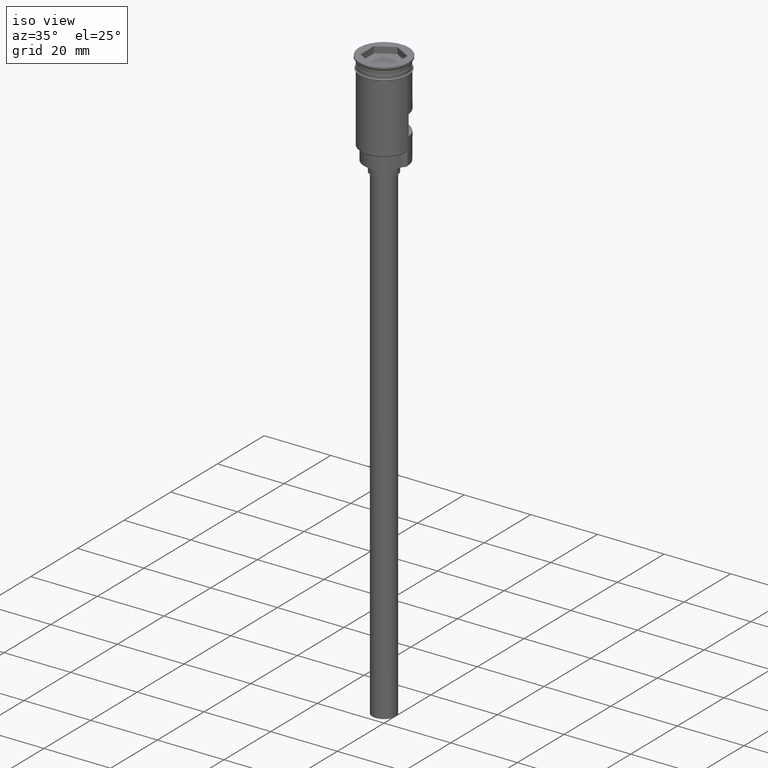
[diagram: clean part render]
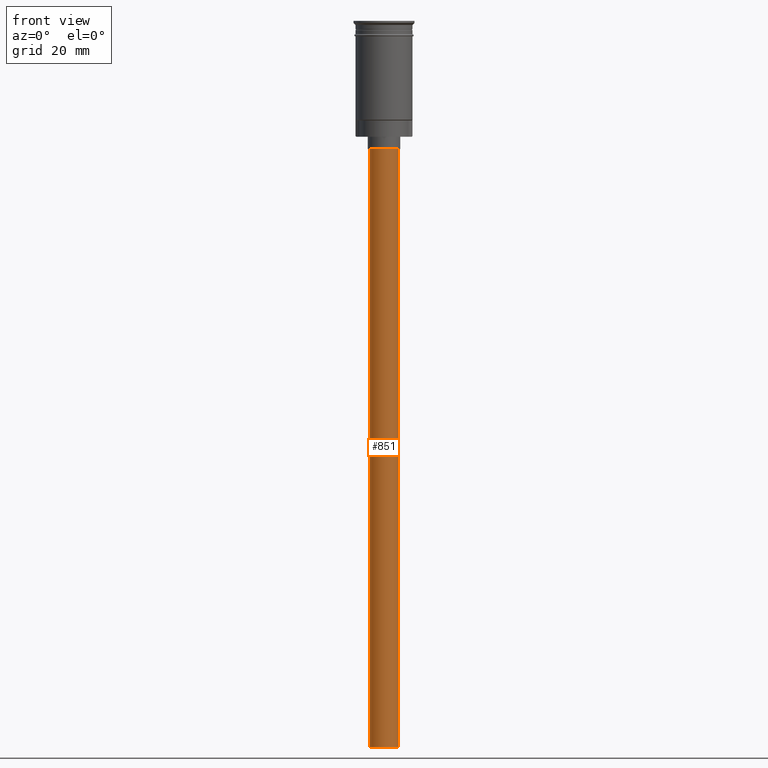
[diagram: tour spotlight — one face highlighted and labeled with its STEP entity id]
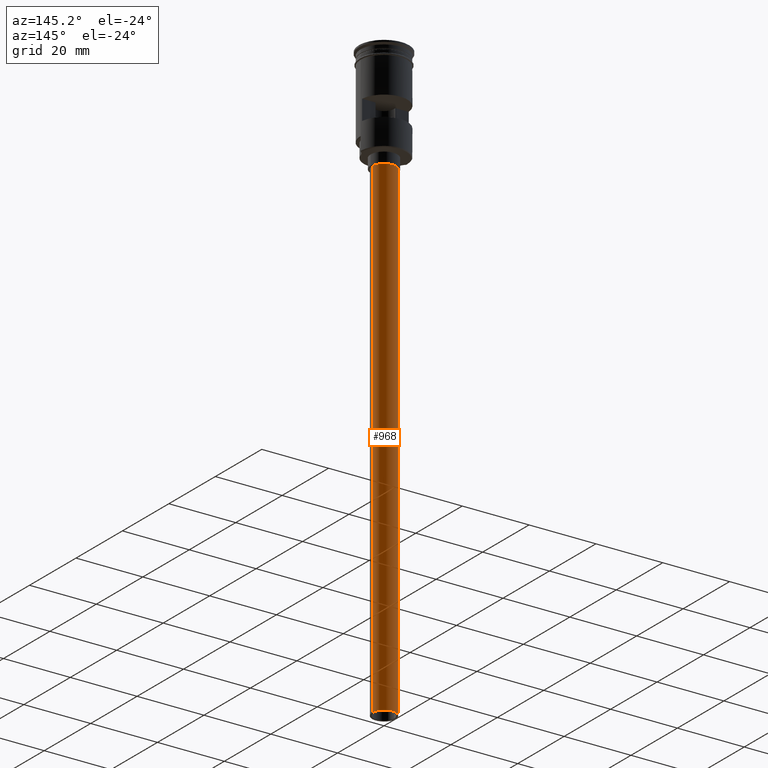
[diagram: tour spotlight — one face highlighted and labeled with its STEP entity id]
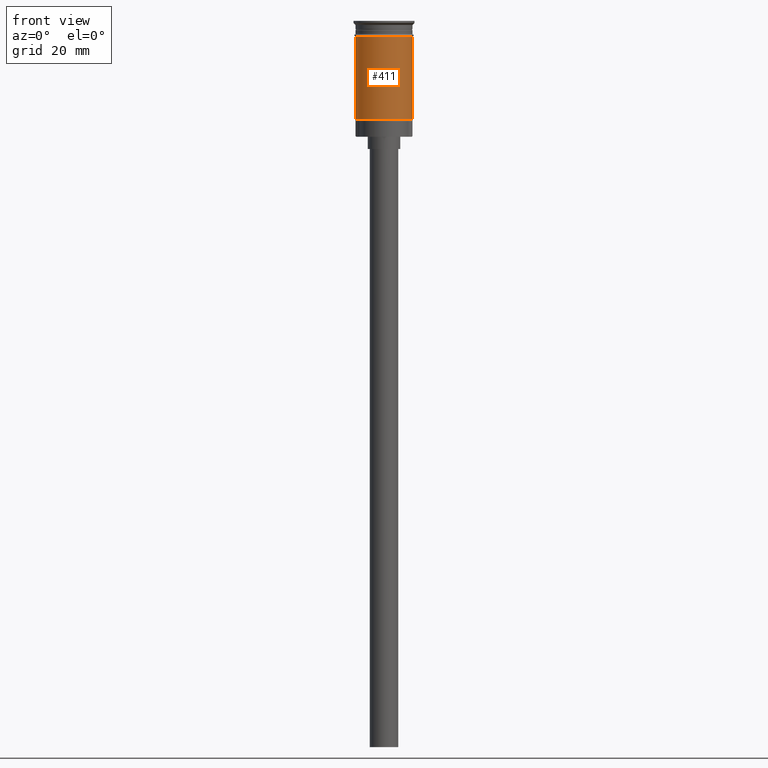
[diagram: tour spotlight — one face highlighted and labeled with its STEP entity id]
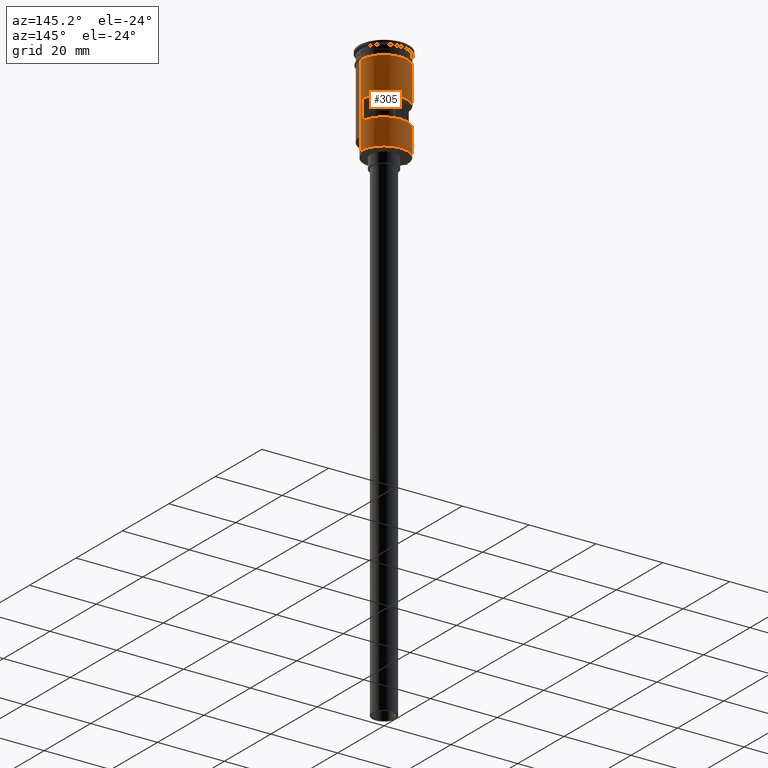
[diagram: tour spotlight — one face highlighted and labeled with its STEP entity id]
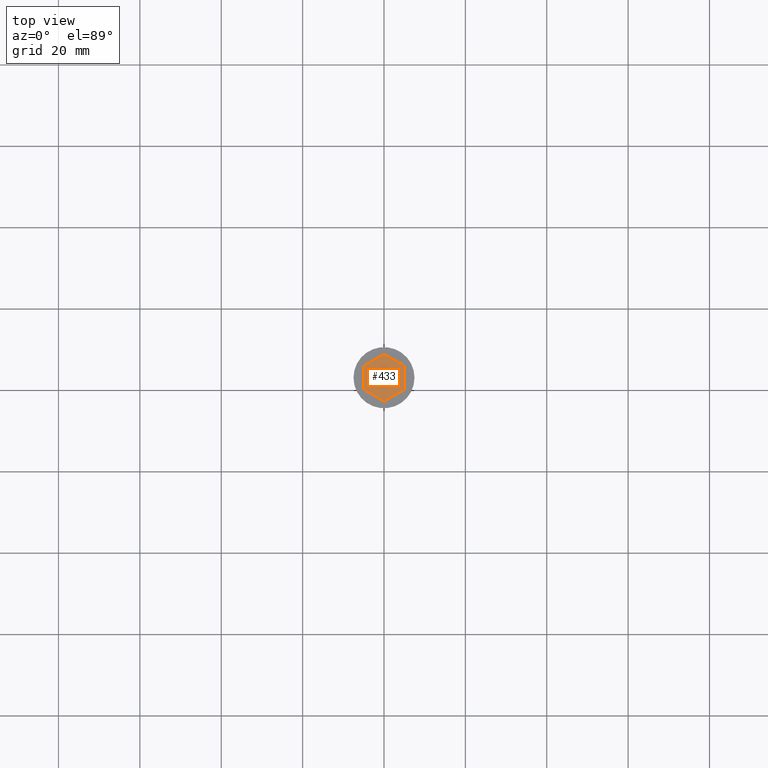
[diagram: tour spotlight — one face highlighted and labeled with its STEP entity id]
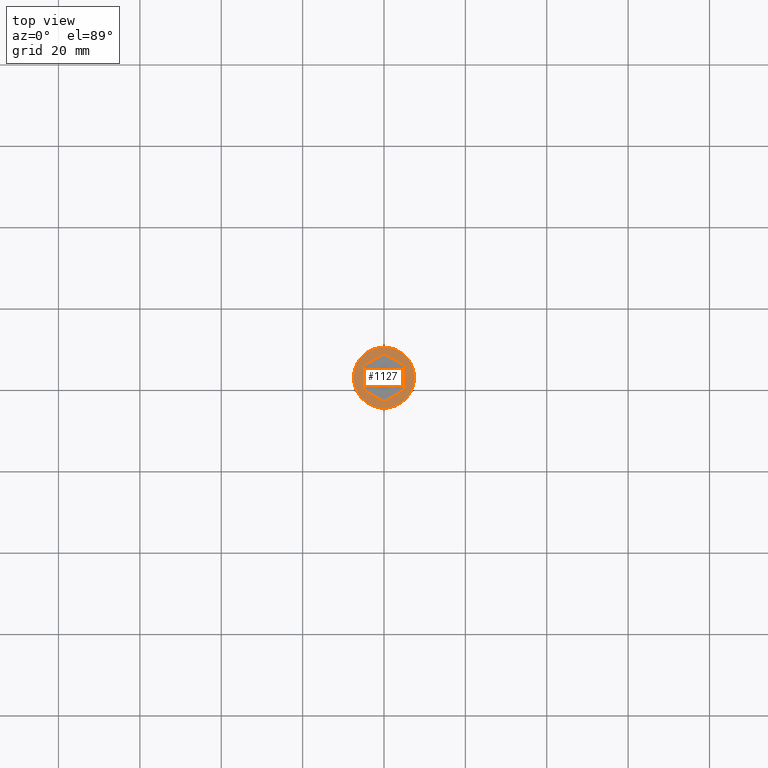
[diagram: tour spotlight — one face highlighted and labeled with its STEP entity id]
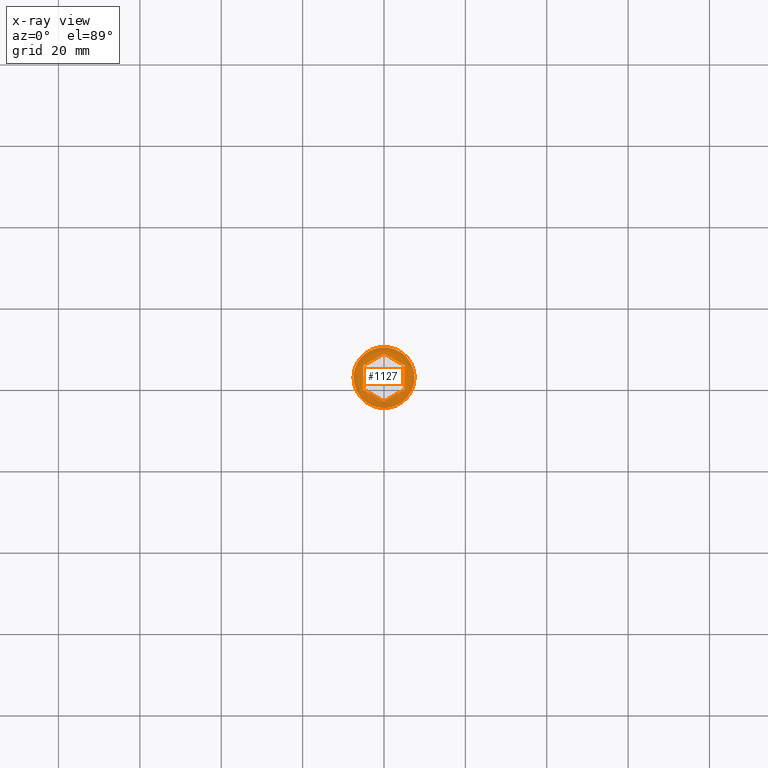
[diagram: x-ray of the same camera — body ghosted, this tour face saturated]
A machine part: a face-by-face anatomy tour. The part has 55 B-rep faces; the first image is the clean iso view, then the 6 largest visible faces are spotlighted one at a time (largest first), each with its STEP entity span.

Face 1 — front view, entity #851. In plain terms, the highlighted cylindrical surface (edge-blend (fillet) strip) has radius 3.5 mm, axis along (-0, -0, 1).
Definition (entity closure, byte-faithful):
#4 = CARTESIAN_POINT ( 'NONE',  ( 0.000000000000000000, 0.000000000000000000, -178.5000000000000000 ) ) ;
#102 = EDGE_LOOP ( 'NONE', ( #1063, #1153, #316, #1580 ) ) ;
#316 = ORIENTED_EDGE ( 'NONE', *, *, #535, .T. ) ;
#321 = CARTESIAN_POINT ( 'NONE',  ( -3.500000000000000444, 4.286263797015737088E-16, -178.5000000000000000 ) ) ;
#535 = EDGE_CURVE ( 'NONE', #846, #810, #944, .T. ) ;
#536 = VERTEX_POINT ( 'NONE', #1206 ) ;
#645 = LINE ( 'NONE', #321, #1292 ) ;
#672 = DIRECTION ( 'NONE',  ( -1.000000000000000000, 0.000000000000000000, 0.000000000000000000 ) ) ;
#675 = CARTESIAN_POINT ( 'NONE',  ( -3.500000000000000444, 4.286263797015737088E-16, -31.50000000000000000 ) ) ;
#704 = VERTEX_POINT ( 'NONE', #675 ) ;
#722 = AXIS2_PLACEMENT_3D ( 'NONE', #1087, #1451, #1582 ) ;
#794 = AXIS2_PLACEMENT_3D ( 'NONE', #809, #1059, #1202 ) ;
#809 = CARTESIAN_POINT ( 'NONE',  ( 0.000000000000000000, 0.000000000000000000, -31.50000000000000000 ) ) ;
#810 = VERTEX_POINT ( 'NONE', #1467 ) ;
#846 = VERTEX_POINT ( 'NONE', #1138 ) ;
#851 = ADVANCED_FACE ( 'NONE', ( #972 ), #1469, .T. ) ;
#867 = CIRCLE ( 'NONE', #794, 3.500000000000000444 ) ;
#944 = LINE ( 'NONE', #1315, #1390 ) ;
#972 = FACE_OUTER_BOUND ( 'NONE', #102, .T. ) ;
#1017 = EDGE_CURVE ( 'NONE', #536, #704, #645, .T. ) ;
#1059 = DIRECTION ( 'NONE',  ( 0.000000000000000000, 0.000000000000000000, -1.000000000000000000 ) ) ;
#1063 = ORIENTED_EDGE ( 'NONE', *, *, #1017, .F. ) ;
#1087 = CARTESIAN_POINT ( 'NONE',  ( 0.000000000000000000, 0.000000000000000000, -178.5000000000000000 ) ) ;
#1138 = CARTESIAN_POINT ( 'NONE',  ( 3.500000000000000444, 0.000000000000000000, -178.5000000000000000 ) ) ;
#1153 = ORIENTED_EDGE ( 'NONE', *, *, #1483, .F. ) ;
#1200 = CIRCLE ( 'NONE', #1269, 3.500000000000000444 ) ;
#1202 = DIRECTION ( 'NONE',  ( -1.000000000000000000, 0.000000000000000000, 0.000000000000000000 ) ) ;
#1206 = CARTESIAN_POINT ( 'NONE',  ( -3.500000000000000444, 4.286263797015737088E-16, -178.5000000000000000 ) ) ;
#1269 = AXIS2_PLACEMENT_3D ( 'NONE', #4, #1359, #672 ) ;
#1292 = VECTOR ( 'NONE', #1442, 1000.000000000000000 ) ;
#1315 = CARTESIAN_POINT ( 'NONE',  ( 3.500000000000000444, 0.000000000000000000, -178.5000000000000000 ) ) ;
#1334 = DIRECTION ( 'NONE',  ( -0.000000000000000000, -0.000000000000000000, 1.000000000000000000 ) ) ;
#1359 = DIRECTION ( 'NONE',  ( 0.000000000000000000, 0.000000000000000000, -1.000000000000000000 ) ) ;
#1390 = VECTOR ( 'NONE', #1334, 1000.000000000000000 ) ;
#1442 = DIRECTION ( 'NONE',  ( -0.000000000000000000, -0.000000000000000000, 1.000000000000000000 ) ) ;
#1451 = DIRECTION ( 'NONE',  ( -0.000000000000000000, -0.000000000000000000, 1.000000000000000000 ) ) ;
#1467 = CARTESIAN_POINT ( 'NONE',  ( 3.500000000000000444, 0.000000000000000000, -31.50000000000000000 ) ) ;
#1469 = CYLINDRICAL_SURFACE ( 'NONE', #722, 3.500000000000000444 ) ;
#1483 = EDGE_CURVE ( 'NONE', #846, #536, #1200, .T. ) ;
#1580 = ORIENTED_EDGE ( 'NONE', *, *, #1590, .T. ) ;
#1582 = DIRECTION ( 'NONE',  ( 1.000000000000000000, 0.000000000000000000, 0.000000000000000000 ) ) ;
#1590 = EDGE_CURVE ( 'NONE', #810, #704, #867, .T. ) ;

Face 2 — auxiliary view, entity #968. In plain terms, the highlighted cylindrical surface (edge-blend (fillet) strip) has radius 3.5 mm, axis along (-0, -0, 1).
Definition (entity closure, byte-faithful):
#39 = AXIS2_PLACEMENT_3D ( 'NONE', #1376, #1012, #500 ) ;
#40 = ORIENTED_EDGE ( 'NONE', *, *, #1017, .T. ) ;
#59 = DIRECTION ( 'NONE',  ( -1.000000000000000000, 0.000000000000000000, 0.000000000000000000 ) ) ;
#180 = CARTESIAN_POINT ( 'NONE',  ( 0.000000000000000000, 0.000000000000000000, -178.5000000000000000 ) ) ;
#246 = ORIENTED_EDGE ( 'NONE', *, *, #943, .T. ) ;
#321 = CARTESIAN_POINT ( 'NONE',  ( -3.500000000000000444, 4.286263797015737088E-16, -178.5000000000000000 ) ) ;
#338 = ORIENTED_EDGE ( 'NONE', *, *, #535, .F. ) ;
#471 = FACE_OUTER_BOUND ( 'NONE', #668, .T. ) ;
#500 = DIRECTION ( 'NONE',  ( -1.000000000000000000, 0.000000000000000000, 0.000000000000000000 ) ) ;
#535 = EDGE_CURVE ( 'NONE', #846, #810, #944, .T. ) ;
#536 = VERTEX_POINT ( 'NONE', #1206 ) ;
#634 = EDGE_CURVE ( 'NONE', #536, #846, #1586, .T. ) ;
#645 = LINE ( 'NONE', #321, #1292 ) ;
#668 = EDGE_LOOP ( 'NONE', ( #1425, #40, #246, #338 ) ) ;
#671 = DIRECTION ( 'NONE',  ( 0.000000000000000000, 0.000000000000000000, -1.000000000000000000 ) ) ;
#675 = CARTESIAN_POINT ( 'NONE',  ( -3.500000000000000444, 4.286263797015737088E-16, -31.50000000000000000 ) ) ;
#689 = CIRCLE ( 'NONE', #39, 3.500000000000000444 ) ;
#704 = VERTEX_POINT ( 'NONE', #675 ) ;
#729 = DIRECTION ( 'NONE',  ( -0.000000000000000000, -0.000000000000000000, 1.000000000000000000 ) ) ;
#735 = CARTESIAN_POINT ( 'NONE',  ( 0.000000000000000000, 0.000000000000000000, -178.5000000000000000 ) ) ;
#810 = VERTEX_POINT ( 'NONE', #1467 ) ;
#846 = VERTEX_POINT ( 'NONE', #1138 ) ;
#943 = EDGE_CURVE ( 'NONE', #704, #810, #689, .T. ) ;
#944 = LINE ( 'NONE', #1315, #1390 ) ;
#957 = CYLINDRICAL_SURFACE ( 'NONE', #1480, 3.500000000000000444 ) ;
#968 = ADVANCED_FACE ( 'NONE', ( #471 ), #957, .T. ) ;
#1012 = DIRECTION ( 'NONE',  ( 0.000000000000000000, 0.000000000000000000, -1.000000000000000000 ) ) ;
#1017 = EDGE_CURVE ( 'NONE', #536, #704, #645, .T. ) ;
#1138 = CARTESIAN_POINT ( 'NONE',  ( 3.500000000000000444, 0.000000000000000000, -178.5000000000000000 ) ) ;
#1206 = CARTESIAN_POINT ( 'NONE',  ( -3.500000000000000444, 4.286263797015737088E-16, -178.5000000000000000 ) ) ;
#1292 = VECTOR ( 'NONE', #1442, 1000.000000000000000 ) ;
#1315 = CARTESIAN_POINT ( 'NONE',  ( 3.500000000000000444, 0.000000000000000000, -178.5000000000000000 ) ) ;
#1334 = DIRECTION ( 'NONE',  ( -0.000000000000000000, -0.000000000000000000, 1.000000000000000000 ) ) ;
#1376 = CARTESIAN_POINT ( 'NONE',  ( 0.000000000000000000, 0.000000000000000000, -31.50000000000000000 ) ) ;
#1390 = VECTOR ( 'NONE', #1334, 1000.000000000000000 ) ;
#1424 = AXIS2_PLACEMENT_3D ( 'NONE', #180, #671, #59 ) ;
#1425 = ORIENTED_EDGE ( 'NONE', *, *, #634, .F. ) ;
#1442 = DIRECTION ( 'NONE',  ( -0.000000000000000000, -0.000000000000000000, 1.000000000000000000 ) ) ;
#1467 = CARTESIAN_POINT ( 'NONE',  ( 3.500000000000000444, 0.000000000000000000, -31.50000000000000000 ) ) ;
#1480 = AXIS2_PLACEMENT_3D ( 'NONE', #735, #729, #1599 ) ;
#1586 = CIRCLE ( 'NONE', #1424, 3.500000000000000444 ) ;
#1599 = DIRECTION ( 'NONE',  ( 1.000000000000000000, 0.000000000000000000, 0.000000000000000000 ) ) ;

Face 3 — front view, entity #411. In plain terms, the highlighted cylindrical surface (edge-blend (fillet) strip) has radius 7 mm, axis along (-0, -0, 1).
Definition (entity closure, byte-faithful):
#19 = DIRECTION ( 'NONE',  ( 1.000000000000000000, 0.000000000000000000, 0.000000000000000000 ) ) ;
#32 = ORIENTED_EDGE ( 'NONE', *, *, #759, .F. ) ;
#55 = LINE ( 'NONE', #628, #212 ) ;
#91 = DIRECTION ( 'NONE',  ( -0.000000000000000000, -0.000000000000000000, 1.000000000000000000 ) ) ;
#121 = EDGE_LOOP ( 'NONE', ( #420, #309, #622, #32 ) ) ;
#145 = LINE ( 'NONE', #1572, #618 ) ;
#206 = CARTESIAN_POINT ( 'NONE',  ( 6.999999999999996447, 8.572527594031468259E-16, -24.29999999999998295 ) ) ;
#212 = VECTOR ( 'NONE', #91, 1000.000000000000000 ) ;
#228 = CARTESIAN_POINT ( 'NONE',  ( -7.000000000000000000, 8.572527594031472204E-16, -3.799999999999998490 ) ) ;
#238 = EDGE_CURVE ( 'NONE', #834, #292, #1065, .T. ) ;
#292 = VERTEX_POINT ( 'NONE', #206 ) ;
#309 = ORIENTED_EDGE ( 'NONE', *, *, #238, .T. ) ;
#333 = VERTEX_POINT ( 'NONE', #371 ) ;
#348 = AXIS2_PLACEMENT_3D ( 'NONE', #1336, #1592, #482 ) ;
#371 = CARTESIAN_POINT ( 'NONE',  ( 6.999999999999999112, 0.000000000000000000, -3.799999999999998490 ) ) ;
#411 = ADVANCED_FACE ( 'NONE', ( #1068 ), #453, .T. ) ;
#420 = ORIENTED_EDGE ( 'NONE', *, *, #1057, .F. ) ;
#453 = CYLINDRICAL_SURFACE ( 'NONE', #933, 6.999999999999996447 ) ;
#482 = DIRECTION ( 'NONE',  ( -1.000000000000000000, 0.000000000000000000, 0.000000000000000000 ) ) ;
#618 = VECTOR ( 'NONE', #1053, 1000.000000000000000 ) ;
#622 = ORIENTED_EDGE ( 'NONE', *, *, #1047, .T. ) ;
#628 = CARTESIAN_POINT ( 'NONE',  ( -6.999999999999996447, 8.572527594031468259E-16, 0.000000000000000000 ) ) ;
#750 = DIRECTION ( 'NONE',  ( -0.000000000000000000, -0.000000000000000000, 1.000000000000000000 ) ) ;
#759 = EDGE_CURVE ( 'NONE', #1507, #333, #1591, .T. ) ;
#781 = DIRECTION ( 'NONE',  ( 1.000000000000000000, 0.000000000000000000, 0.000000000000000000 ) ) ;
#834 = VERTEX_POINT ( 'NONE', #1305 ) ;
#933 = AXIS2_PLACEMENT_3D ( 'NONE', #1588, #750, #19 ) ;
#1039 = AXIS2_PLACEMENT_3D ( 'NONE', #1164, #1383, #781 ) ;
#1047 = EDGE_CURVE ( 'NONE', #292, #333, #145, .T. ) ;
#1053 = DIRECTION ( 'NONE',  ( -0.000000000000000000, -0.000000000000000000, 1.000000000000000000 ) ) ;
#1057 = EDGE_CURVE ( 'NONE', #834, #1507, #55, .T. ) ;
#1065 = CIRCLE ( 'NONE', #348, 6.999999999999996447 ) ;
#1068 = FACE_OUTER_BOUND ( 'NONE', #121, .T. ) ;
#1164 = CARTESIAN_POINT ( 'NONE',  ( 0.000000000000000000, 0.000000000000000000, -3.799999999999998490 ) ) ;
#1305 = CARTESIAN_POINT ( 'NONE',  ( -6.999999999999993783, 0.000000000000000000, -24.29999999999998295 ) ) ;
#1336 = CARTESIAN_POINT ( 'NONE',  ( 0.000000000000000000, 0.000000000000000000, -24.29999999999998295 ) ) ;
#1383 = DIRECTION ( 'NONE',  ( -0.000000000000000000, -0.000000000000000000, 1.000000000000000000 ) ) ;
#1507 = VERTEX_POINT ( 'NONE', #228 ) ;
#1572 = CARTESIAN_POINT ( 'NONE',  ( 6.999999999999996447, 0.000000000000000000, 0.000000000000000000 ) ) ;
#1588 = CARTESIAN_POINT ( 'NONE',  ( 0.000000000000000000, 0.000000000000000000, 0.000000000000000000 ) ) ;
#1591 = CIRCLE ( 'NONE', #1039, 6.999999999999999112 ) ;
#1592 = DIRECTION ( 'NONE',  ( -0.000000000000000000, -0.000000000000000000, 1.000000000000000000 ) ) ;

Face 4 — auxiliary view, entity #305. In plain terms, the highlighted cylindrical surface (edge-blend (fillet) strip) has radius 7 mm, axis along (-0, -0, 1).
Definition (entity closure, byte-faithful):
#25 = ORIENTED_EDGE ( 'NONE', *, *, #986, .F. ) ;
#49 = LINE ( 'NONE', #850, #449 ) ;
#55 = LINE ( 'NONE', #628, #212 ) ;
#69 = DIRECTION ( 'NONE',  ( -1.000000000000000000, 0.000000000000000000, 0.000000000000000000 ) ) ;
#88 = CYLINDRICAL_SURFACE ( 'NONE', #1290, 6.999999999999996447 ) ;
#91 = DIRECTION ( 'NONE',  ( -0.000000000000000000, -0.000000000000000000, 1.000000000000000000 ) ) ;
#145 = LINE ( 'NONE', #1572, #618 ) ;
#146 = DIRECTION ( 'NONE',  ( -0.000000000000000000, -5.421010862427526114E-16, 1.000000000000000000 ) ) ;
#165 = CARTESIAN_POINT ( 'NONE',  ( 6.974238309665075519, 0.5999999999999999778, -20.50000000000000000 ) ) ;
#198 = CARTESIAN_POINT ( 'NONE',  ( -6.974238309665074631, 0.5999999999999999778, -14.50000000000000178 ) ) ;
#206 = CARTESIAN_POINT ( 'NONE',  ( 6.999999999999996447, 8.572527594031468259E-16, -24.29999999999998295 ) ) ;
#212 = VECTOR ( 'NONE', #91, 1000.000000000000000 ) ;
#228 = CARTESIAN_POINT ( 'NONE',  ( -7.000000000000000000, 8.572527594031472204E-16, -3.799999999999998490 ) ) ;
#236 = DIRECTION ( 'NONE',  ( -0.000000000000000000, -2.710505431213763057E-16, -1.000000000000000000 ) ) ;
#290 = CARTESIAN_POINT ( 'NONE',  ( -6.999999999999993783, 0.000000000000000000, -28.29999999999999361 ) ) ;
#292 = VERTEX_POINT ( 'NONE', #206 ) ;
#304 = LINE ( 'NONE', #1301, #940 ) ;
#305 = ADVANCED_FACE ( 'NONE', ( #690, #1170 ), #88, .T. ) ;
#307 = CARTESIAN_POINT ( 'NONE',  ( -6.974238309665074631, 0.5999999999999999778, -20.50000000000000000 ) ) ;
#308 = DIRECTION ( 'NONE',  ( -0.000000000000000000, -0.000000000000000000, 1.000000000000000000 ) ) ;
#320 = DIRECTION ( 'NONE',  ( -0.000000000000000000, -0.000000000000000000, 1.000000000000000000 ) ) ;
#333 = VERTEX_POINT ( 'NONE', #371 ) ;
#355 = CIRCLE ( 'NONE', #1041, 6.999999999999996447 ) ;
#367 = EDGE_LOOP ( 'NONE', ( #1560, #1060, #1554, #1541 ) ) ;
#371 = CARTESIAN_POINT ( 'NONE',  ( 6.999999999999999112, 0.000000000000000000, -3.799999999999998490 ) ) ;
#378 = CARTESIAN_POINT ( 'NONE',  ( 6.999999999999993783, 8.572527594031465301E-16, -28.50000000000000000 ) ) ;
#419 = VERTEX_POINT ( 'NONE', #165 ) ;
#437 = CARTESIAN_POINT ( 'NONE',  ( -6.974238309665074631, 0.5999999999999999778, 0.000000000000000000 ) ) ;
#449 = VECTOR ( 'NONE', #1330, 1000.000000000000000 ) ;
#460 = ORIENTED_EDGE ( 'NONE', *, *, #1047, .F. ) ;
#516 = LINE ( 'NONE', #437, #643 ) ;
#530 = VERTEX_POINT ( 'NONE', #835 ) ;
#599 = VERTEX_POINT ( 'NONE', #307 ) ;
#618 = VECTOR ( 'NONE', #1053, 1000.000000000000000 ) ;
#628 = CARTESIAN_POINT ( 'NONE',  ( -6.999999999999996447, 8.572527594031468259E-16, 0.000000000000000000 ) ) ;
#643 = VECTOR ( 'NONE', #308, 1000.000000000000000 ) ;
#674 = ORIENTED_EDGE ( 'NONE', *, *, #1118, .T. ) ;
#690 = FACE_BOUND ( 'NONE', #367, .T. ) ;
#724 = VERTEX_POINT ( 'NONE', #290 ) ;
#727 = AXIS2_PLACEMENT_3D ( 'NONE', #756, #146, #878 ) ;
#740 = LINE ( 'NONE', #378, #985 ) ;
#744 = ORIENTED_EDGE ( 'NONE', *, *, #1057, .T. ) ;
#756 = CARTESIAN_POINT ( 'NONE',  ( 0.000000000000000000, 0.000000000000000000, -20.50000000000000000 ) ) ;
#758 = DIRECTION ( 'NONE',  ( -0.000000000000000000, -0.000000000000000000, 1.000000000000000000 ) ) ;
#772 = AXIS2_PLACEMENT_3D ( 'NONE', #1318, #236, #1207 ) ;
#797 = EDGE_CURVE ( 'NONE', #530, #419, #49, .T. ) ;
#802 = DIRECTION ( 'NONE',  ( 0.000000000000000000, 0.000000000000000000, 1.000000000000000000 ) ) ;
#816 = DIRECTION ( 'NONE',  ( -0.000000000000000000, -0.000000000000000000, 1.000000000000000000 ) ) ;
#834 = VERTEX_POINT ( 'NONE', #1305 ) ;
#835 = CARTESIAN_POINT ( 'NONE',  ( 6.974238309665075519, 0.5999999999999999778, -14.50000000000000178 ) ) ;
#850 = CARTESIAN_POINT ( 'NONE',  ( 6.974238309665074631, 0.5999999999999999778, 0.000000000000000000 ) ) ;
#878 = DIRECTION ( 'NONE',  ( 0.000000000000000000, 1.000000000000000000, 4.956352788505165240E-16 ) ) ;
#916 = CIRCLE ( 'NONE', #772, 6.999999999999996447 ) ;
#922 = EDGE_CURVE ( 'NONE', #333, #1507, #1531, .T. ) ;
#939 = DIRECTION ( 'NONE',  ( -0.000000000000000000, -0.000000000000000000, 1.000000000000000000 ) ) ;
#940 = VECTOR ( 'NONE', #320, 1000.000000000000000 ) ;
#961 = AXIS2_PLACEMENT_3D ( 'NONE', #1186, #816, #1055 ) ;
#985 = VECTOR ( 'NONE', #758, 1000.000000000000000 ) ;
#986 = EDGE_CURVE ( 'NONE', #1497, #292, #740, .T. ) ;
#1041 = AXIS2_PLACEMENT_3D ( 'NONE', #1402, #802, #69 ) ;
#1047 = EDGE_CURVE ( 'NONE', #292, #333, #145, .T. ) ;
#1053 = DIRECTION ( 'NONE',  ( -0.000000000000000000, -0.000000000000000000, 1.000000000000000000 ) ) ;
#1055 = DIRECTION ( 'NONE',  ( 1.000000000000000000, 0.000000000000000000, 0.000000000000000000 ) ) ;
#1057 = EDGE_CURVE ( 'NONE', #834, #1507, #55, .T. ) ;
#1060 = ORIENTED_EDGE ( 'NONE', *, *, #797, .F. ) ;
#1076 = CARTESIAN_POINT ( 'NONE',  ( 6.999999999999993783, 8.572527594031465301E-16, -28.29999999999999361 ) ) ;
#1102 = ORIENTED_EDGE ( 'NONE', *, *, #922, .F. ) ;
#1118 = EDGE_CURVE ( 'NONE', #724, #834, #304, .T. ) ;
#1170 = FACE_OUTER_BOUND ( 'NONE', #1522, .T. ) ;
#1181 = ORIENTED_EDGE ( 'NONE', *, *, #1360, .T. ) ;
#1186 = CARTESIAN_POINT ( 'NONE',  ( 0.000000000000000000, 0.000000000000000000, -3.799999999999998490 ) ) ;
#1207 = DIRECTION ( 'NONE',  ( 0.000000000000000000, -1.000000000000000000, 2.478176394252582620E-16 ) ) ;
#1290 = AXIS2_PLACEMENT_3D ( 'NONE', #1555, #939, #1431 ) ;
#1301 = CARTESIAN_POINT ( 'NONE',  ( -6.999999999999993783, 0.000000000000000000, -28.50000000000000000 ) ) ;
#1305 = CARTESIAN_POINT ( 'NONE',  ( -6.999999999999993783, 0.000000000000000000, -24.29999999999998295 ) ) ;
#1310 = EDGE_CURVE ( 'NONE', #1435, #530, #916, .T. ) ;
#1318 = CARTESIAN_POINT ( 'NONE',  ( 0.000000000000000000, 0.000000000000000000, -14.50000000000000178 ) ) ;
#1330 = DIRECTION ( 'NONE',  ( 0.000000000000000000, 0.000000000000000000, -1.000000000000000000 ) ) ;
#1350 = CIRCLE ( 'NONE', #727, 6.999999999999996447 ) ;
#1360 = EDGE_CURVE ( 'NONE', #1497, #724, #355, .T. ) ;
#1361 = EDGE_CURVE ( 'NONE', #599, #1435, #516, .T. ) ;
#1402 = CARTESIAN_POINT ( 'NONE',  ( 0.000000000000000000, 0.000000000000000000, -28.29999999999999361 ) ) ;
#1431 = DIRECTION ( 'NONE',  ( 1.000000000000000000, 0.000000000000000000, 0.000000000000000000 ) ) ;
#1435 = VERTEX_POINT ( 'NONE', #198 ) ;
#1445 = EDGE_CURVE ( 'NONE', #419, #599, #1350, .T. ) ;
#1497 = VERTEX_POINT ( 'NONE', #1076 ) ;
#1507 = VERTEX_POINT ( 'NONE', #228 ) ;
#1522 = EDGE_LOOP ( 'NONE', ( #674, #744, #1102, #460, #25, #1181 ) ) ;
#1531 = CIRCLE ( 'NONE', #961, 6.999999999999999112 ) ;
#1541 = ORIENTED_EDGE ( 'NONE', *, *, #1361, .F. ) ;
#1554 = ORIENTED_EDGE ( 'NONE', *, *, #1310, .F. ) ;
#1555 = CARTESIAN_POINT ( 'NONE',  ( 0.000000000000000000, 0.000000000000000000, 0.000000000000000000 ) ) ;
#1560 = ORIENTED_EDGE ( 'NONE', *, *, #1445, .F. ) ;
#1572 = CARTESIAN_POINT ( 'NONE',  ( 6.999999999999996447, 0.000000000000000000, 0.000000000000000000 ) ) ;

Face 5 — top view, entity #433. In plain terms, the highlighted planar face has unit normal (-0, 0, 1).
Definition (entity closure, byte-faithful):
#12 = VECTOR ( 'NONE', #376, 1000.000000000000114 ) ;
#30 = DIRECTION ( 'NONE',  ( 0.8660254037844385966, 0.4999999999999998890, 0.000000000000000000 ) ) ;
#48 = LINE ( 'NONE', #463, #1343 ) ;
#86 = CARTESIAN_POINT ( 'NONE',  ( 8.673617379884035472E-16, -5.773502691896257311, -2.000000000000000000 ) ) ;
#115 = CARTESIAN_POINT ( 'NONE',  ( -4.999999999999999112, 0.000000000000000000, -2.000000000000000000 ) ) ;
#128 = VECTOR ( 'NONE', #1000, 1000.000000000000114 ) ;
#129 = EDGE_CURVE ( 'NONE', #1459, #703, #512, .T. ) ;
#154 = PLANE ( 'NONE',  #1527 ) ;
#296 = CARTESIAN_POINT ( 'NONE',  ( 2.499999999999999556, -4.330127018922193649, -2.000000000000000000 ) ) ;
#360 = LINE ( 'NONE', #753, #1141 ) ;
#366 = EDGE_CURVE ( 'NONE', #1027, #1169, #418, .T. ) ;
#376 = DIRECTION ( 'NONE',  ( 0.8660254037844387076, -0.4999999999999998890, 0.000000000000000000 ) ) ;
#418 = LINE ( 'NONE', #296, #1317 ) ;
#433 = ADVANCED_FACE ( 'NONE', ( #1487 ), #154, .T. ) ;
#463 = CARTESIAN_POINT ( 'NONE',  ( -2.499999999999999112, 4.330127018922192761, -2.000000000000000000 ) ) ;
#485 = ORIENTED_EDGE ( 'NONE', *, *, #1312, .T. ) ;
#509 = CARTESIAN_POINT ( 'NONE',  ( 0.000000000000000000, 0.000000000000000000, -2.000000000000000000 ) ) ;
#512 = LINE ( 'NONE', #1133, #128 ) ;
#560 = CARTESIAN_POINT ( 'NONE',  ( 0.000000000000000000, 5.773502691896255534, -2.000000000000000000 ) ) ;
#568 = EDGE_LOOP ( 'NONE', ( #1366, #648, #485, #1374, #1470, #699 ) ) ;
#636 = EDGE_CURVE ( 'NONE', #703, #1077, #48, .T. ) ;
#637 = DIRECTION ( 'NONE',  ( 0.000000000000000000, 1.000000000000000000, -0.000000000000000000 ) ) ;
#639 = VERTEX_POINT ( 'NONE', #935 ) ;
#648 = ORIENTED_EDGE ( 'NONE', *, *, #636, .T. ) ;
#697 = DIRECTION ( 'NONE',  ( 1.000000000000000000, 0.000000000000000000, 0.000000000000000000 ) ) ;
#699 = ORIENTED_EDGE ( 'NONE', *, *, #864, .T. ) ;
#703 = VERTEX_POINT ( 'NONE', #560 ) ;
#713 = CARTESIAN_POINT ( 'NONE',  ( -4.999999999999999112, 2.886751345948128655, -2.000000000000000000 ) ) ;
#739 = CARTESIAN_POINT ( 'NONE',  ( -2.499999999999999112, -4.330127018922193649, -2.000000000000000000 ) ) ;
#753 = CARTESIAN_POINT ( 'NONE',  ( 4.999999999999999112, 0.000000000000000000, -2.000000000000000000 ) ) ;
#793 = VECTOR ( 'NONE', #1578, 1000.000000000000000 ) ;
#864 = EDGE_CURVE ( 'NONE', #1169, #1459, #360, .T. ) ;
#880 = DIRECTION ( 'NONE',  ( -0.000000000000000000, 0.000000000000000000, 1.000000000000000000 ) ) ;
#935 = CARTESIAN_POINT ( 'NONE',  ( -4.999999999999999112, -2.886751345948129543, -2.000000000000000000 ) ) ;
#989 = CARTESIAN_POINT ( 'NONE',  ( 4.999999999999999112, 2.886751345948129543, -2.000000000000000000 ) ) ;
#1000 = DIRECTION ( 'NONE',  ( -0.8660254037844388186, 0.4999999999999996114, 0.000000000000000000 ) ) ;
#1027 = VERTEX_POINT ( 'NONE', #86 ) ;
#1077 = VERTEX_POINT ( 'NONE', #713 ) ;
#1089 = LINE ( 'NONE', #115, #793 ) ;
#1133 = CARTESIAN_POINT ( 'NONE',  ( 2.499999999999997780, 4.330127018922194537, -2.000000000000000000 ) ) ;
#1141 = VECTOR ( 'NONE', #637, 1000.000000000000000 ) ;
#1169 = VERTEX_POINT ( 'NONE', #1184 ) ;
#1184 = CARTESIAN_POINT ( 'NONE',  ( 4.999999999999999112, -2.886751345948129543, -2.000000000000000000 ) ) ;
#1289 = EDGE_CURVE ( 'NONE', #639, #1027, #1478, .T. ) ;
#1312 = EDGE_CURVE ( 'NONE', #1077, #639, #1089, .T. ) ;
#1317 = VECTOR ( 'NONE', #30, 1000.000000000000227 ) ;
#1328 = DIRECTION ( 'NONE',  ( -0.8660254037844385966, -0.4999999999999999445, 0.000000000000000000 ) ) ;
#1343 = VECTOR ( 'NONE', #1328, 1000.000000000000114 ) ;
#1366 = ORIENTED_EDGE ( 'NONE', *, *, #129, .T. ) ;
#1374 = ORIENTED_EDGE ( 'NONE', *, *, #1289, .T. ) ;
#1459 = VERTEX_POINT ( 'NONE', #989 ) ;
#1470 = ORIENTED_EDGE ( 'NONE', *, *, #366, .T. ) ;
#1478 = LINE ( 'NONE', #739, #12 ) ;
#1487 = FACE_OUTER_BOUND ( 'NONE', #568, .T. ) ;
#1527 = AXIS2_PLACEMENT_3D ( 'NONE', #509, #880, #697 ) ;
#1578 = DIRECTION ( 'NONE',  ( 0.000000000000000000, -1.000000000000000000, 0.000000000000000000 ) ) ;

Face 6 — top view, entity #1127. An x-ray twin of the same camera follows (body ghosted, this face saturated) — the face is partly hidden behind the body. In plain terms, the highlighted planar face has unit normal (0, -0, 1).
Definition (entity closure, byte-faithful):
#8 = DIRECTION ( 'NONE',  ( 1.000000000000000000, 0.000000000000000000, 0.000000000000000000 ) ) ;
#42 = ORIENTED_EDGE ( 'NONE', *, *, #357, .T. ) ;
#78 = PLANE ( 'NONE',  #866 ) ;
#79 = LINE ( 'NONE', #1399, #351 ) ;
#87 = ORIENTED_EDGE ( 'NONE', *, *, #663, .T. ) ;
#133 = CARTESIAN_POINT ( 'NONE',  ( -0.05000000000000093953, 5.860105232274702480, 0.000000000000000000 ) ) ;
#179 = VECTOR ( 'NONE', #979, 1000.000000000000114 ) ;
#187 = ORIENTED_EDGE ( 'NONE', *, *, #1074, .T. ) ;
#216 = CARTESIAN_POINT ( 'NONE',  ( -5.100000000000001421, 2.886751345948128655, 0.000000000000000000 ) ) ;
#217 = ORIENTED_EDGE ( 'NONE', *, *, #405, .T. ) ;
#229 = ORIENTED_EDGE ( 'NONE', *, *, #1353, .T. ) ;
#234 = CIRCLE ( 'NONE', #1121, 7.500000000000000000 ) ;
#272 = EDGE_LOOP ( 'NONE', ( #1513, #1135, #217, #958, #42, #187 ) ) ;
#351 = VECTOR ( 'NONE', #1428, 1000.000000000000000 ) ;
#357 = EDGE_CURVE ( 'NONE', #1352, #1159, #1025, .T. ) ;
#396 = CARTESIAN_POINT ( 'NONE',  ( 4.725224118234917529E-17, 5.888972745734183611, 0.000000000000000000 ) ) ;
#405 = EDGE_CURVE ( 'NONE', #779, #670, #79, .T. ) ;
#429 = LINE ( 'NONE', #1367, #1252 ) ;
#452 = CARTESIAN_POINT ( 'NONE',  ( 6.485146259703940858E-16, -5.888972745734185388, 0.000000000000000000 ) ) ;
#508 = DIRECTION ( 'NONE',  ( -0.000000000000000000, -0.000000000000000000, 1.000000000000000000 ) ) ;
#540 = FACE_OUTER_BOUND ( 'NONE', #1339, .T. ) ;
#541 = CARTESIAN_POINT ( 'NONE',  ( -5.049999999999999822, -2.973353886326575601, 0.000000000000000000 ) ) ;
#602 = CARTESIAN_POINT ( 'NONE',  ( 0.000000000000000000, 0.000000000000000000, 0.000000000000000000 ) ) ;
#631 = CARTESIAN_POINT ( 'NONE',  ( 0.000000000000000000, 0.000000000000000000, 0.000000000000000000 ) ) ;
#650 = CARTESIAN_POINT ( 'NONE',  ( -7.500000000000000000, 9.184850993605147944E-16, 0.000000000000000000 ) ) ;
#652 = CARTESIAN_POINT ( 'NONE',  ( 0.05000000000000229955, -5.860105232274703368, 0.000000000000000000 ) ) ;
#663 = EDGE_CURVE ( 'NONE', #1476, #1178, #789, .T. ) ;
#670 = VERTEX_POINT ( 'NONE', #860 ) ;
#778 = CARTESIAN_POINT ( 'NONE',  ( 5.100000000000001421, -2.944486372867094026, 0.000000000000000000 ) ) ;
#779 = VERTEX_POINT ( 'NONE', #396 ) ;
#789 = CIRCLE ( 'NONE', #1195, 7.500000000000000000 ) ;
#860 = CARTESIAN_POINT ( 'NONE',  ( 5.100000000000001421, 2.944486372867094470, 0.000000000000000000 ) ) ;
#866 = AXIS2_PLACEMENT_3D ( 'NONE', #1427, #1054, #915 ) ;
#871 = VERTEX_POINT ( 'NONE', #990 ) ;
#893 = EDGE_CURVE ( 'NONE', #1382, #779, #1337, .T. ) ;
#915 = DIRECTION ( 'NONE',  ( 1.000000000000000000, 0.000000000000000000, 0.000000000000000000 ) ) ;
#918 = DIRECTION ( 'NONE',  ( 0.000000000000000000, -1.000000000000000000, -0.000000000000000000 ) ) ;
#951 = LINE ( 'NONE', #541, #1101 ) ;
#958 = ORIENTED_EDGE ( 'NONE', *, *, #1433, .T. ) ;
#979 = DIRECTION ( 'NONE',  ( 0.8660254037844385966, 0.4999999999999999445, 0.000000000000000000 ) ) ;
#990 = CARTESIAN_POINT ( 'NONE',  ( -5.100000000000001421, -2.944486372867093582, 0.000000000000000000 ) ) ;
#1025 = LINE ( 'NONE', #652, #1223 ) ;
#1050 = DIRECTION ( 'NONE',  ( 0.000000000000000000, 1.000000000000000000, 0.000000000000000000 ) ) ;
#1054 = DIRECTION ( 'NONE',  ( 0.000000000000000000, -0.000000000000000000, 1.000000000000000000 ) ) ;
#1067 = CARTESIAN_POINT ( 'NONE',  ( 7.500000000000000000, 0.000000000000000000, 0.000000000000000000 ) ) ;
#1074 = EDGE_CURVE ( 'NONE', #1159, #871, #951, .T. ) ;
#1101 = VECTOR ( 'NONE', #1388, 1000.000000000000000 ) ;
#1121 = AXIS2_PLACEMENT_3D ( 'NONE', #631, #508, #1240 ) ;
#1127 = ADVANCED_FACE ( 'NONE', ( #1543, #540 ), #78, .T. ) ;
#1135 = ORIENTED_EDGE ( 'NONE', *, *, #893, .T. ) ;
#1159 = VERTEX_POINT ( 'NONE', #452 ) ;
#1178 = VERTEX_POINT ( 'NONE', #1067 ) ;
#1195 = AXIS2_PLACEMENT_3D ( 'NONE', #602, #1589, #8 ) ;
#1223 = VECTOR ( 'NONE', #1516, 1000.000000000000000 ) ;
#1240 = DIRECTION ( 'NONE',  ( 1.000000000000000000, 0.000000000000000000, 0.000000000000000000 ) ) ;
#1252 = VECTOR ( 'NONE', #918, 1000.000000000000000 ) ;
#1279 = CARTESIAN_POINT ( 'NONE',  ( -5.100000000000001421, 2.944486372867091806, 0.000000000000000000 ) ) ;
#1337 = LINE ( 'NONE', #133, #179 ) ;
#1339 = EDGE_LOOP ( 'NONE', ( #229, #87 ) ) ;
#1352 = VERTEX_POINT ( 'NONE', #778 ) ;
#1353 = EDGE_CURVE ( 'NONE', #1178, #1476, #234, .T. ) ;
#1367 = CARTESIAN_POINT ( 'NONE',  ( 5.100000000000001421, -2.886751345948129543, 0.000000000000000000 ) ) ;
#1382 = VERTEX_POINT ( 'NONE', #1279 ) ;
#1388 = DIRECTION ( 'NONE',  ( -0.8660254037844387076, 0.4999999999999998335, 0.000000000000000000 ) ) ;
#1399 = CARTESIAN_POINT ( 'NONE',  ( 5.050000000000000711, 2.973353886326576045, 0.000000000000000000 ) ) ;
#1427 = CARTESIAN_POINT ( 'NONE',  ( 0.000000000000000000, 0.000000000000000000, 0.000000000000000000 ) ) ;
#1428 = DIRECTION ( 'NONE',  ( 0.8660254037844388186, -0.4999999999999996669, 0.000000000000000000 ) ) ;
#1433 = EDGE_CURVE ( 'NONE', #670, #1352, #429, .T. ) ;
#1476 = VERTEX_POINT ( 'NONE', #650 ) ;
#1513 = ORIENTED_EDGE ( 'NONE', *, *, #1519, .T. ) ;
#1516 = DIRECTION ( 'NONE',  ( -0.8660254037844387076, -0.4999999999999998890, 0.000000000000000000 ) ) ;
#1519 = EDGE_CURVE ( 'NONE', #871, #1382, #1574, .T. ) ;
#1543 = FACE_BOUND ( 'NONE', #272, .T. ) ;
#1565 = VECTOR ( 'NONE', #1050, 1000.000000000000000 ) ;
#1574 = LINE ( 'NONE', #216, #1565 ) ;
#1589 = DIRECTION ( 'NONE',  ( -0.000000000000000000, -0.000000000000000000, 1.000000000000000000 ) ) ;